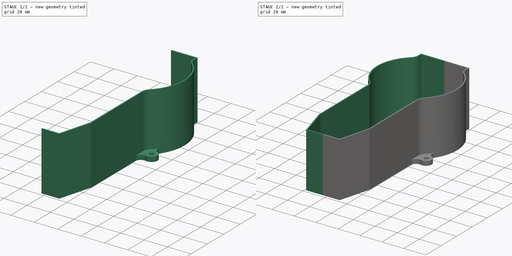
[diagram: build sequence overview — one tinted view per stage of 2, left to right]
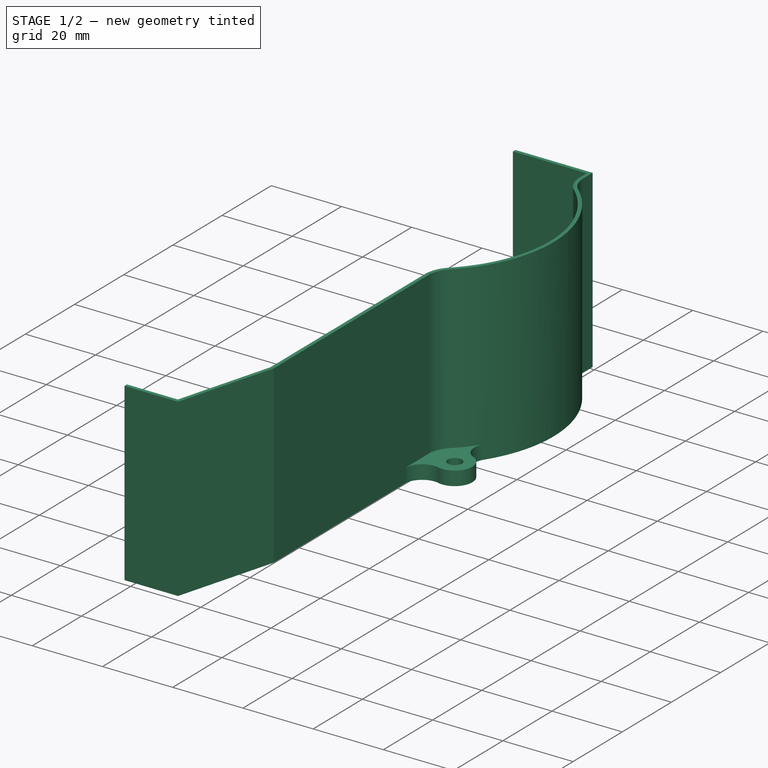
[diagram: stage 1 of 2 — iso view after this stage's code; geometry added in this stage tinted green]
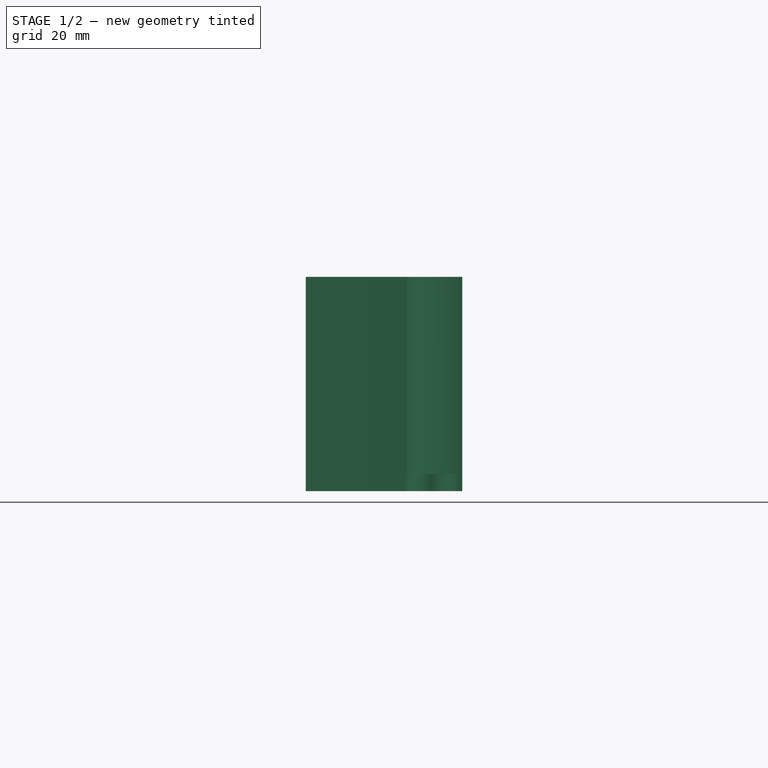
[diagram: stage 1 of 2 — front view after this stage's code; geometry added in this stage tinted green]
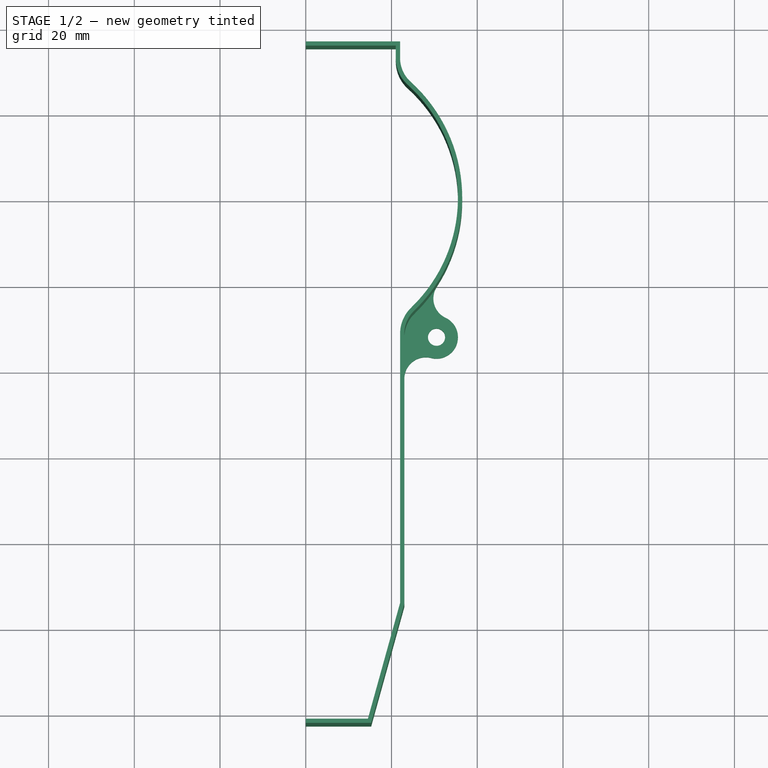
[diagram: stage 1 of 2 — top view after this stage's code; geometry added in this stage tinted green]
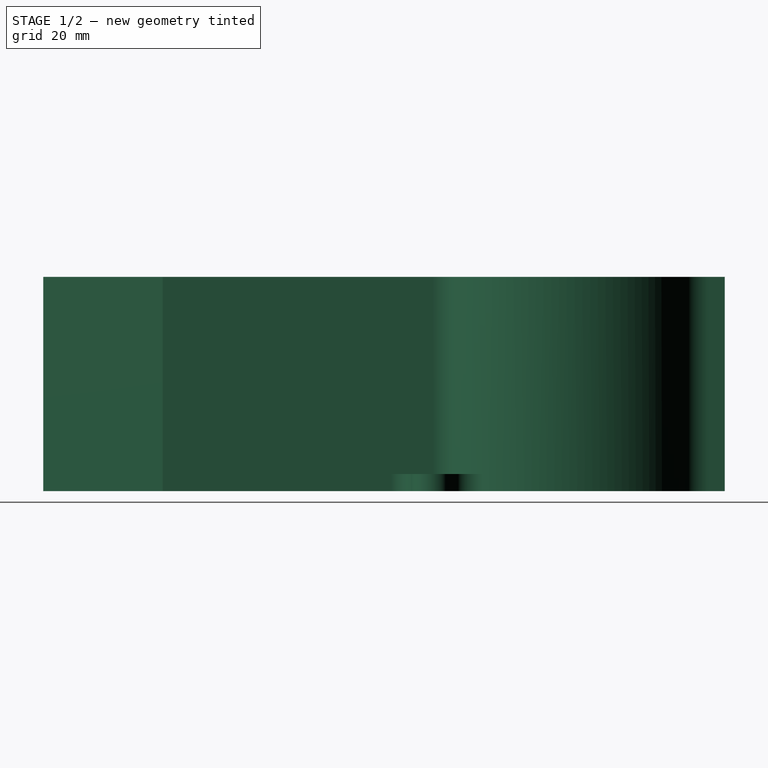
[diagram: stage 1 of 2 — right view after this stage's code; geometry added in this stage tinted green]
FCSTD DOCUMENT  (FreeCAD 0.19R24366 (Git))
Label: Кассета для Обечаек
License: All rights reserved
LicenseURL: http://en.wikipedia.org/wiki/All_rights_reserved
objects: Sketcher::SketchObject×3, PartDesign::Pad×2, PartDesign::Mirrored×1, PartDesign::Body×1
note: 9 computed .brp shape members not serialized (recipe doc carries the construction recipe); baked Part::Feature solids carry a one-line shape summary decoded from their .brp

FEATURE [Sketcher::SketchObject] Sketch
  FullyConstrained = true
  MapMode = 5
  Support = -> [XY_Plane]
  sketch-geometry (9):
    g0: ArcOfCircle CenterX=0 CenterY=0 CenterZ=0 NormalX=0 NormalY=0 NormalZ=1 AngleXU=0 Radius=35.5 StartAngle=5.47828 EndAngle=7.11916
    g1: ArcOfCircle CenterX=29.5 CenterY=32.6458 CenterZ=0 NormalX=0 NormalY=0 NormalZ=1 AngleXU=0 Radius=8.5 StartAngle=3.14159 EndAngle=3.97757
    g2: ArcOfCircle CenterX=30.5 CenterY=-31.7136 CenterZ=0 NormalX=0 NormalY=0 NormalZ=1 AngleXU=0 Radius=8.5 StartAngle=2.33669 EndAngle=3.14159
    g3: LineSegment StartX=21 StartY=32.6458 StartZ=0 EndX=21 EndY=35.5 EndZ=0
    g4: LineSegment StartX=21 StartY=35.5 StartZ=0 EndX=0 EndY=35.5 EndZ=0
    g5: LineSegment StartX=0 StartY=35.5 StartZ=0 EndX=0 EndY=-121.5 EndZ=0
    g6: LineSegment StartX=0 StartY=-121.5 StartZ=0 EndX=14.5 EndY=-121.5 EndZ=0
    g7: LineSegment StartX=14.5 StartY=-121.5 StartZ=0 EndX=22 EndY=-94.5 EndZ=0
    g8: LineSegment StartX=22 StartY=-94.5 StartZ=0 EndX=22 EndY=-31.7136 EndZ=0
  constraints (29):
    c: Coincident(g0,g-1)
    c: Coincident(g1,g0)
    c: Coincident(g2,g0)
    c: Coincident(g3,g1)
    c: Vertical(g3)
    c: Coincident(g4,g3)
    c: PointOnObject(g4,g-2)
    c: Horizontal(g4)
    c: Coincident(g5,g4)
    c: PointOnObject(g5,g-2)
    c: Coincident(g6,g5)
    c: Horizontal(g6)
    c: Coincident(g8,g7)
    c: Coincident(g8,g2)
    c: Coincident(g6,g7)
    c: Vertical(g8)
    c: Tangent(g8,g2)
    c: Tangent(g2,g0)
    c: Tangent(g0,g1)
    c: Tangent(g1,g3)
    c: Distance(g5) = 157
    c: DistanceY(g7,g3) = 130
    c: DistanceX(g3) = 21
    c: DistanceX(g7) = 22
    c: DistanceX(g6) = 14.5
    c: Equal(g2,g1)
    c: Diameter(g2) = 17
    c: PointOnObject(g4,g0)
    c: Diameter(g0) = 71
FEATURE [Sketcher::SketchObject] Sketch001
  FullyConstrained = true
  MapMode = 5
  Support = -> [XY_Plane]
  expr: Constraints[26] = Sketch.Constraints[26]
  expr: Constraints[24] = Sketch.Constraints[24]
  expr: Constraints[23] = Sketch.Constraints[23]
  expr: Constraints[22] = Sketch.Constraints[22]
  expr: Constraints[28] = Sketch.Constraints[28]
  expr: Constraints[21] = Sketch.Constraints[21]
  expr: Constraints[20] = Sketch.Constraints[20]
  sketch-geometry (26):
    g0: ArcOfCircle CenterX=0 CenterY=0 CenterZ=0 NormalX=0 NormalY=0 NormalZ=1 AngleXU=0 Radius=35.5 StartAngle=5.47828 EndAngle=7.11916
    g1: ArcOfCircle CenterX=29.5 CenterY=32.6458 CenterZ=0 NormalX=0 NormalY=0 NormalZ=1 AngleXU=0 Radius=8.5 StartAngle=3.14159 EndAngle=3.97757
    g2: ArcOfCircle CenterX=30.5 CenterY=-31.7136 CenterZ=0 NormalX=0 NormalY=0 NormalZ=1 AngleXU=0 Radius=8.5 StartAngle=2.33669 EndAngle=3.14159
    g3: LineSegment StartX=21 StartY=32.6458 StartZ=0 EndX=21 EndY=35.5 EndZ=0
    g4: LineSegment StartX=21 StartY=35.5 StartZ=0 EndX=0 EndY=35.5 EndZ=0
    g5: LineSegment StartX=0 StartY=35.5 StartZ=0 EndX=0 EndY=-121.5 EndZ=0
    g6: LineSegment StartX=0 StartY=-121.5 StartZ=0 EndX=14.5 EndY=-121.5 EndZ=0
    g7: LineSegment StartX=14.5 StartY=-121.5 StartZ=0 EndX=22 EndY=-94.5 EndZ=0
    g8: LineSegment StartX=22 StartY=-94.5 StartZ=0 EndX=22 EndY=-31.7136 EndZ=0
    g9: LineSegment StartX=0 StartY=35.5 StartZ=0 EndX=0 EndY=36.5 EndZ=0
    g10: LineSegment StartX=0 StartY=36.5 StartZ=0 EndX=21 EndY=36.5 EndZ=0
    g11: LineSegment StartX=22 StartY=35.5 StartZ=0 EndX=22 EndY=32.6458 EndZ=0
    g12: LineSegment StartX=23 StartY=-31.7136 StartZ=0 EndX=23 EndY=-94.5 EndZ=0
    g13: LineSegment StartX=22.9635 StartY=-94.7676 StartZ=0 EndX=15.4635 EndY=-121.768 EndZ=0
    g14: LineSegment StartX=14.5 StartY=-122.5 StartZ=0 EndX=0 EndY=-122.5 EndZ=0
    g15: LineSegment StartX=0 StartY=-122.5 StartZ=0 EndX=0 EndY=-121.5 EndZ=0
    g16: ArcOfCircle CenterX=14.5 CenterY=-121.5 CenterZ=0 NormalX=0 NormalY=0 NormalZ=1 AngleXU=0 Radius=1 StartAngle=4.71239 EndAngle=6.01224
    g17: ArcOfCircle CenterX=22 CenterY=-94.5 CenterZ=0 NormalX=0 NormalY=0 NormalZ=1 AngleXU=0 Radius=1 StartAngle=6.01224 EndAngle=6.28319
    g18: ArcOfCircle CenterX=30.5 CenterY=-31.7136 CenterZ=0 NormalX=0 NormalY=0 NormalZ=1 AngleXU=0 Radius=7.5 StartAngle=2.33669 EndAngle=3.14159
    g19: ArcOfCircle CenterX=0 CenterY=0 CenterZ=0 NormalX=0 NormalY=0 NormalZ=1 AngleXU=0 Radius=36.5 StartAngle=5.47828 EndAngle=7.11916
    g20: ArcOfCircle CenterX=29.5 CenterY=32.6458 CenterZ=0 NormalX=0 NormalY=0 NormalZ=1 AngleXU=0 Radius=7.5 StartAngle=3.14159 EndAngle=3.97757
    g21: ArcOfCircle CenterX=21 CenterY=35.5 CenterZ=0 NormalX=0 NormalY=0 NormalZ=1 AngleXU=0 Radius=1 StartAngle=2.8e-15 EndAngle=1.5708
    g22: LineSegment StartX=21 StartY=36.5 StartZ=0 EndX=22 EndY=36.5 EndZ=0
    g23: LineSegment StartX=22 StartY=35.5 StartZ=0 EndX=22 EndY=36.5 EndZ=0
    g24: LineSegment StartX=14.5 StartY=-122.5 StartZ=0 EndX=15.2601 EndY=-122.5 EndZ=0
    g25: LineSegment StartX=15.4635 StartY=-121.768 StartZ=0 EndX=15.2601 EndY=-122.5 EndZ=0
  constraints (75):
    c: Coincident(g0,g-1)
    c: Coincident(g1,g0)
    c: Coincident(g2,g0)
    c: Coincident(g3,g1)
    c: Vertical(g3)
    c: Coincident(g4,g3)
    c: PointOnObject(g4,g-2)
    c: Horizontal(g4)
    c: Coincident(g5,g4)
    c: PointOnObject(g5,g-2)
    c: Coincident(g6,g5)
    c: Horizontal(g6)
    c: Coincident(g8,g7)
    c: Coincident(g8,g2)
    c: Coincident(g6,g7)
    c: Vertical(g8)
    c: Tangent(g8,g2)
    c: Tangent(g2,g0)
    c: Tangent(g0,g1)
    c: Tangent(g1,g3)
    c: Distance(g5) = 157
    c: DistanceY(g7,g3) = 130
    c: DistanceX(g3) = 21
    c: DistanceX(g7) = 22
    c: DistanceX(g6) = 14.5
    c: Equal(g2,g1)
    c: Diameter(g2) = 17
    c: PointOnObject(g4,g0)
    c: Diameter(g0) = 71
    c: Coincident(g9,g4)
    c: PointOnObject(g9,g-2)
    c: Coincident(g10,g9)
    c: Horizontal(g10)
    c: Vertical(g11)
    c: Vertical(g12)
    c: PointOnObject(g14,g-2)
    c: Horizontal(g14)
    c: Coincident(g15,g14)
    c: Coincident(g15,g6)
    c: Coincident(g16,g6)
    c: Coincident(g16,g14)
    c: Coincident(g16,g13)
    c: Coincident(g17,g7)
    c: Coincident(g17,g13)
    c: Coincident(g17,g12)
    c: Coincident(g18,g2)
    c: Coincident(g18,g12)
    c: Coincident(g19,g0)
    c: Coincident(g19,g18)
    c: Coincident(g20,g1)
    c: Coincident(g20,g19)
    c: Coincident(g20,g11)
    c: Tangent(g14,g16)
    c: Tangent(g16,g13)
    c: Tangent(g13,g17)
    c: Tangent(g17,g12)
    c: Tangent(g12,g18)
    c: Tangent(g18,g19)
    c: Tangent(g19,g20)
    c: Tangent(g20,g11)
    c: Tangent(g10,g21) = 1.5708
    c: Tangent(g11,g21) = 1.5708
    c: Coincident(g21,g3)
    c: Equal(g17,g16)
    c: Diameter(g16) = 2
    c: Coincident(g22,g10)
    c: Horizontal(g22)
    c: Coincident(g23,g11)
    c: Coincident(g23,g22)
    c: Vertical(g23)
    c: Coincident(g24,g14)
    c: Horizontal(g24)
    c: Coincident(g25,g13)
    c: Coincident(g25,g24)
    c: Tangent(g25,g16)
FEATURE [Sketcher::SketchObject] Sketch002
  FullyConstrained = false
  MapMode = 5
  Support = -> [XY_Plane]
  expr: Constraints[63] = Sketch001.Constraints[64]
  expr: Constraints[20] = Sketch001.Constraints[20]
  expr: Constraints[26] = Sketch001.Constraints[26]
  expr: Constraints[24] = Sketch001.Constraints[24]
  expr: Constraints[23] = Sketch001.Constraints[23]
  expr: Constraints[22] = Sketch001.Constraints[22]
  expr: Constraints[28] = Sketch001.Constraints[28]
  expr: Constraints[21] = Sketch001.Constraints[21]
  sketch-geometry (37):
    g0: ArcOfCircle CenterX=0 CenterY=0 CenterZ=0 NormalX=0 NormalY=0 NormalZ=1 AngleXU=0 Radius=35.5 StartAngle=5.47828 EndAngle=7.11916
    g1: ArcOfCircle CenterX=29.5 CenterY=32.6458 CenterZ=0 NormalX=0 NormalY=0 NormalZ=1 AngleXU=0 Radius=8.5 StartAngle=3.14159 EndAngle=3.97757
    g2: ArcOfCircle CenterX=30.5 CenterY=-31.7136 CenterZ=0 NormalX=0 NormalY=0 NormalZ=1 AngleXU=0 Radius=8.5 StartAngle=2.33669 EndAngle=3.14159
    g3: LineSegment StartX=21 StartY=32.6458 StartZ=0 EndX=21 EndY=35.5 EndZ=0
    g4: LineSegment StartX=21 StartY=35.5 StartZ=0 EndX=0 EndY=35.5 EndZ=0
    g5: LineSegment StartX=0 StartY=35.5 StartZ=0 EndX=0 EndY=-121.5 EndZ=0
    g6: LineSegment StartX=0 StartY=-121.5 StartZ=0 EndX=14.5 EndY=-121.5 EndZ=0
    g7: LineSegment StartX=14.5 StartY=-121.5 StartZ=0 EndX=22 EndY=-94.5 EndZ=0
    g8: LineSegment StartX=22 StartY=-94.5 StartZ=0 EndX=22 EndY=-31.7136 EndZ=0
    g9: LineSegment StartX=0 StartY=35.5 StartZ=0 EndX=0 EndY=36.4917 EndZ=0
    g10: LineSegment StartX=0 StartY=36.4917 StartZ=0 EndX=21 EndY=36.4917 EndZ=0
    g11: LineSegment StartX=21.9917 StartY=35.5 StartZ=0 EndX=21.9917 EndY=32.6458 EndZ=0
    g12: LineSegment StartX=23 StartY=-31.7136 StartZ=0 EndX=23 EndY=-94.5 EndZ=0
    g13: LineSegment StartX=22.9635 StartY=-94.7676 StartZ=0 EndX=15.4635 EndY=-121.768 EndZ=0
    g14: LineSegment StartX=14.5 StartY=-122.5 StartZ=0 EndX=0 EndY=-122.5 EndZ=0
    g15: LineSegment StartX=0 StartY=-122.5 StartZ=0 EndX=0 EndY=-121.5 EndZ=0
    g16: ArcOfCircle CenterX=14.5 CenterY=-121.5 CenterZ=0 NormalX=0 NormalY=0 NormalZ=1 AngleXU=0 Radius=1 StartAngle=4.71239 EndAngle=6.01224
    g17: ArcOfCircle CenterX=22 CenterY=-94.5 CenterZ=0 NormalX=0 NormalY=0 NormalZ=1 AngleXU=0 Radius=1 StartAngle=6.01224 EndAngle=6.28319
    g18: ArcOfCircle CenterX=30.5 CenterY=-31.7136 CenterZ=0 NormalX=0 NormalY=0 NormalZ=1 AngleXU=0 Radius=7.5 StartAngle=2.33669 EndAngle=3.14159
    g19: ArcOfCircle CenterX=0 CenterY=0 CenterZ=0 NormalX=0 NormalY=0 NormalZ=1 AngleXU=0 Radius=36.5 StartAngle=5.47828 EndAngle=7.12797
    g20: ArcOfCircle CenterX=29.5 CenterY=32.6458 CenterZ=0 NormalX=0 NormalY=0 NormalZ=1 AngleXU=0 Radius=7.50831 StartAngle=3.14159 EndAngle=3.93472
    g21: ArcOfCircle CenterX=21 CenterY=35.5 CenterZ=0 NormalX=0 NormalY=0 NormalZ=1 AngleXU=0 Radius=0.991692 StartAngle=-3.6e-15 EndAngle=1.5708
    g22: LineSegment StartX=21 StartY=36.4917 StartZ=0 EndX=21.9917 EndY=36.4917 EndZ=0
    g23: LineSegment StartX=21.9917 StartY=35.5 StartZ=0 EndX=21.9917 EndY=36.4917 EndZ=0
    g24: LineSegment StartX=14.5 StartY=-122.5 StartZ=0 EndX=15.2601 EndY=-122.5 EndZ=0
    g25: LineSegment StartX=15.4635 StartY=-121.768 StartZ=0 EndX=15.2601 EndY=-122.5 EndZ=0
    g26: Circle CenterX=30.5 CenterY=-31.7136 CenterZ=0 NormalX=0 NormalY=0 NormalZ=1 AngleXU=0 Radius=2
    g27: ArcOfCircle CenterX=30.5 CenterY=-31.7136 CenterZ=0 NormalX=0 NormalY=0 NormalZ=1 AngleXU=0 Radius=5 StartAngle=4.45971 EndAngle=7.41364
    g28: ArcOfCircle CenterX=28 CenterY=-41.396 CenterZ=0 NormalX=0 NormalY=0 NormalZ=1 AngleXU=0 Radius=5 StartAngle=1.31812 EndAngle=3.14159
    g29: ArcOfCircle CenterX=34.7625 CenterY=-22.6675 CenterZ=0 NormalX=0 NormalY=0 NormalZ=1 AngleXU=0 Radius=5 StartAngle=2.56377 EndAngle=4.27204
    g30: ArcOfCircle CenterX=30.5 CenterY=-31.7136 CenterZ=0 NormalX=0 NormalY=0 NormalZ=1 AngleXU=0 Radius=7.5 StartAngle=2.33669 EndAngle=3.14159
    g31: ArcOfCircle CenterX=0 CenterY=0 CenterZ=0 NormalX=0 NormalY=0 NormalZ=1 AngleXU=0 Radius=36.5 StartAngle=5.47828 EndAngle=5.70536
    g32: LineSegment StartX=23 StartY=-31.7136 StartZ=0 EndX=23 EndY=-41.396 EndZ=0
    g33: LineSegment StartX=23 StartY=-41.396 StartZ=0 EndX=22.2672 EndY=-41.501 EndZ=0
    g34: LineSegment StartX=22.2672 StartY=-41.501 StartZ=0 EndX=23 EndY=-31.7136 EndZ=0
    g35: LineSegment StartX=30.5743 StartY=-19.9365 StartZ=0 EndX=28.6389 EndY=-21.4771 EndZ=0
    g36: LineSegment StartX=28.6389 StartY=-21.4771 StartZ=0 EndX=25.3011 EndY=-26.3078 EndZ=0
  constraints (100):
    c: Coincident(g0,g-1)
    c: Coincident(g1,g0)
    c: Coincident(g2,g0)
    c: Coincident(g3,g1)
    c: Vertical(g3)
    c: Coincident(g4,g3)
    c: PointOnObject(g4,g-2)
    c: Horizontal(g4)
    c: Coincident(g5,g4)
    c: PointOnObject(g5,g-2)
    c: Coincident(g6,g5)
    c: Horizontal(g6)
    c: Coincident(g8,g7)
    c: Coincident(g8,g2)
    c: Coincident(g6,g7)
    c: Vertical(g8)
    c: Tangent(g8,g2)
    c: Tangent(g2,g0)
    c: Tangent(g0,g1)
    c: Tangent(g1,g3)
    c: Distance(g5) = 157
    c: DistanceY(g7,g3) = 130
    c: DistanceX(g3) = 21
    c: DistanceX(g7) = 22
    c: DistanceX(g6) = 14.5
    c: Equal(g2,g1)
    c: Diameter(g2) = 17
    c: PointOnObject(g4,g0)
    c: Diameter(g0) = 71
    c: Coincident(g9,g4)
    c: PointOnObject(g9,g-2)
    c: Coincident(g10,g9)
    c: Horizontal(g10)
    c: Vertical(g11)
    c: Vertical(g12)
    c: PointOnObject(g14,g-2)
    c: Horizontal(g14)
    c: Coincident(g15,g14)
    c: Coincident(g15,g6)
    c: Coincident(g16,g6)
    c: Coincident(g16,g14)
    c: Coincident(g16,g13)
    c: Coincident(g17,g7)
    c: Coincident(g17,g13)
    c: Coincident(g17,g12)
    c: Coincident(g18,g2)
    c: Coincident(g18,g12)
    c: Coincident(g19,g0)
    c: Coincident(g19,g18)
    c: Coincident(g20,g1)
    c: Coincident(g20,g19)
    c: Coincident(g20,g11)
    c: Tangent(g14,g16)
    c: Tangent(g16,g13)
    c: Tangent(g13,g17)
    c: Tangent(g17,g12)
    c: Tangent(g12,g18)
    c: Tangent(g18,g19)
    c: Tangent(g20,g11)
    c: Tangent(g10,g21) = 1.5708
    c: Tangent(g11,g21) = 1.5708
    c: Coincident(g21,g3)
    c: Equal(g17,g16)
    c: Diameter(g16) = 2
    c: Coincident(g22,g10)
    c: Horizontal(g22)
    c: Coincident(g23,g11)
    c: Coincident(g23,g22)
    c: Vertical(g23)
    c: Coincident(g24,g14)
    c: Horizontal(g24)
    c: Coincident(g25,g13)
    c: Coincident(g25,g24)
    c: Coincident(g27,g26)
    c: Coincident(g28,g27)
    c: Coincident(g29,g27)
    c: Diameter(g26) = 4
    c: Diameter(g27) = 10
    c: Tangent(g27,g29)
    c: Tangent(g29,g19)
    c: Tangent(g27,g28)
    c: Tangent(g28,g12)
    c: Equal(g28,g29)
    c: Equal(g29,g27)
    c: Coincident(g26,g2)
    c: Coincident(g30,g26)
    c: Coincident(g30,g12)
    c: Coincident(g30,g18)
    c: Coincident(g31,g-1)
    c: Coincident(g31,g30)
    c: Coincident(g31,g29)
    c: Coincident(g32,g30)
    c: Coincident(g32,g28)
    c: Vertical(g32)
    c: Coincident(g33,g28)
    c: Coincident(g34,g33)
    c: Coincident(g34,g30)
    c: Coincident(g35,g29)
    c: Coincident(g36,g35)
    c: Coincident(g36,g30)
FEATURE [PartDesign::Pad] Pad
  Direction = (1,1,1)
  Length = 50
  Length2 = 100
  Profile = -> Sketch001
  Type = 0
FEATURE [PartDesign::Pad] Pad001
  BaseFeature = -> Pad
  Direction = (1,1,1)
  Length = 4
  Length2 = 100
  Profile = -> Sketch002
  Type = 0
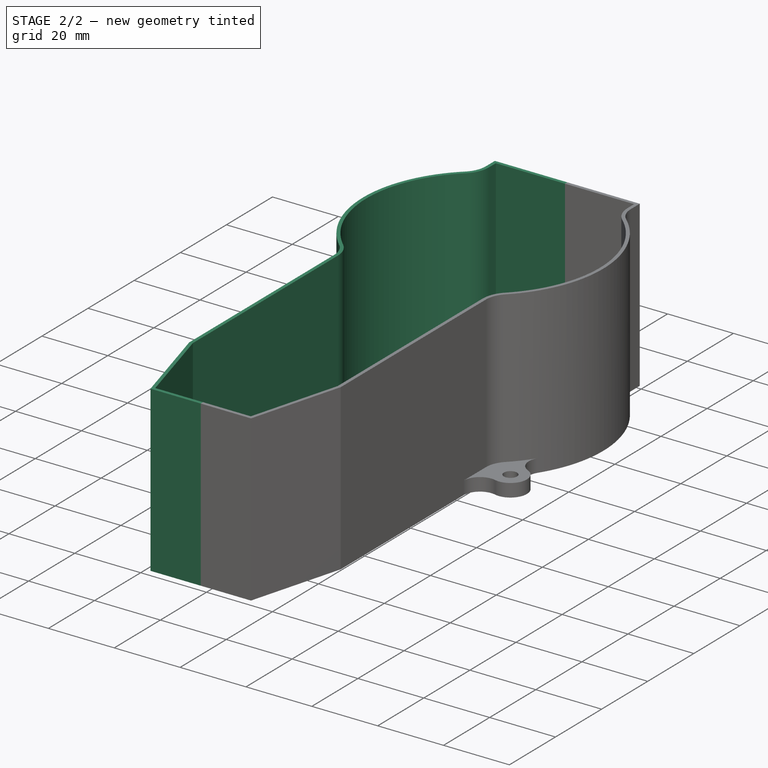
[diagram: stage 2 of 2 — iso view after this stage's code; geometry added in this stage tinted green]
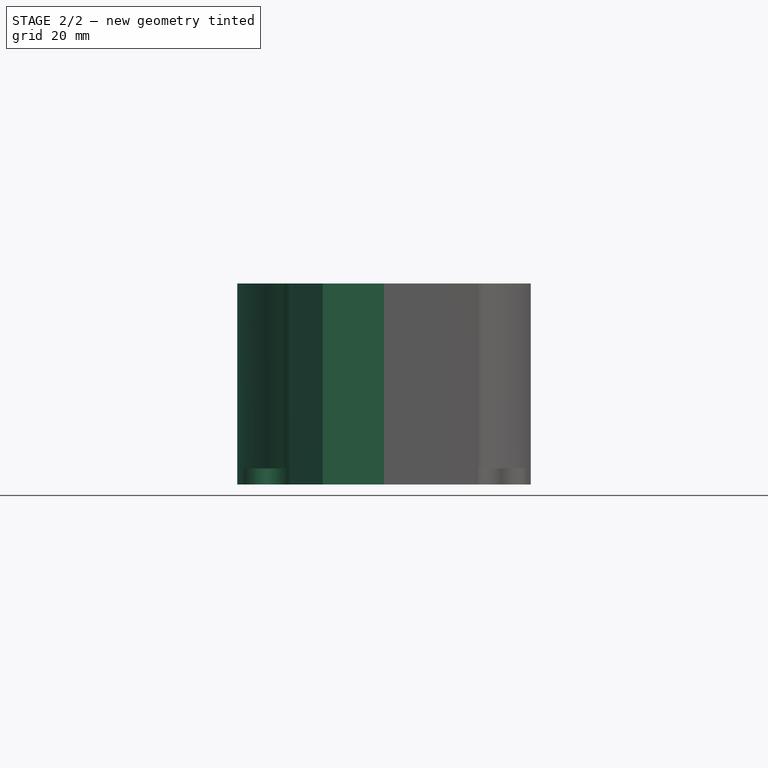
[diagram: stage 2 of 2 — front view after this stage's code; geometry added in this stage tinted green]
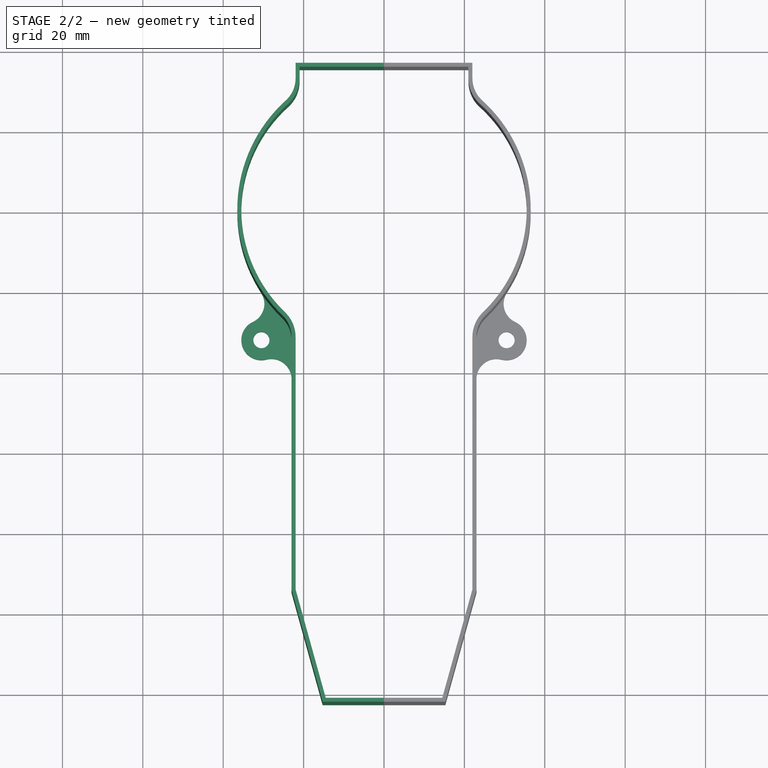
[diagram: stage 2 of 2 — top view after this stage's code; geometry added in this stage tinted green]
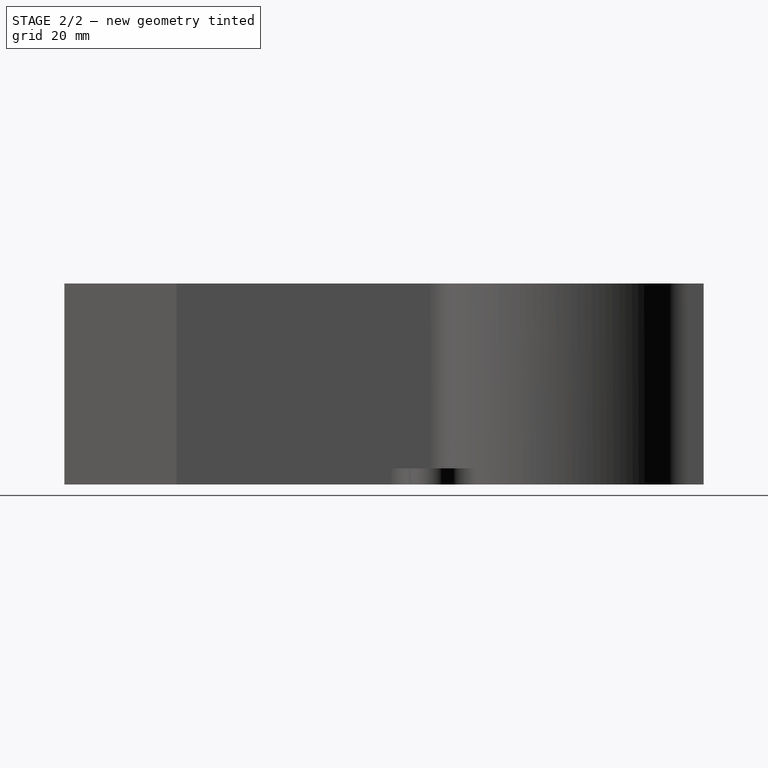
[diagram: stage 2 of 2 — right view after this stage's code; geometry added in this stage tinted green]
FEATURE [PartDesign::Mirrored] Mirrored
  BaseFeature = -> Pad001
  MirrorPlane = -> Sketch001 [V_Axis]
  Originals = -> [Pad,Pad001]
FEATURE [PartDesign::Body] Body
  Group = -> [Sketch,Sketch001,Sketch002,Pad,Pad001,Mirrored]
  Origin = -> Origin
  Tip = -> Mirrored
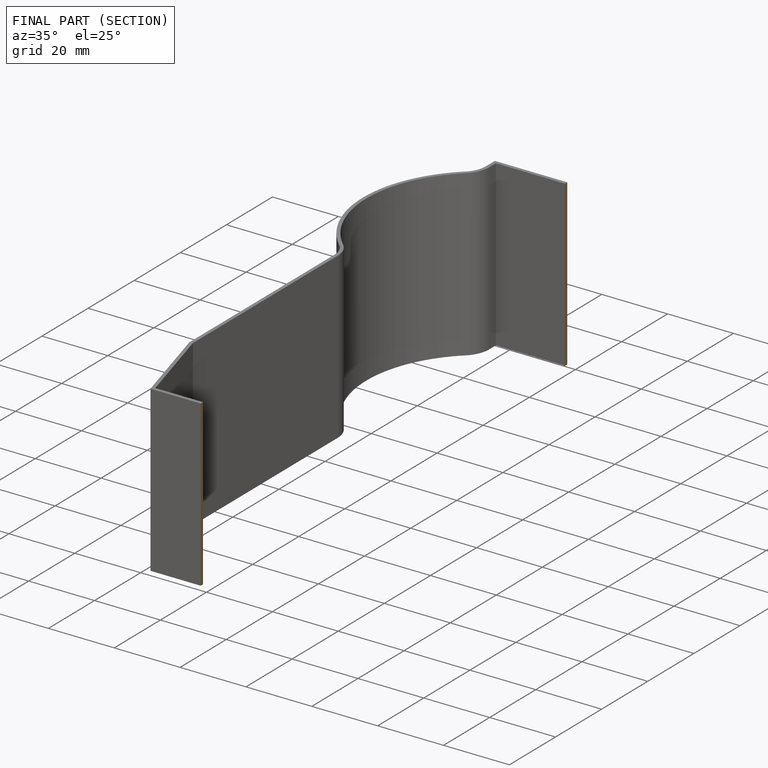
[diagram: finished part — half-section view (interior)]
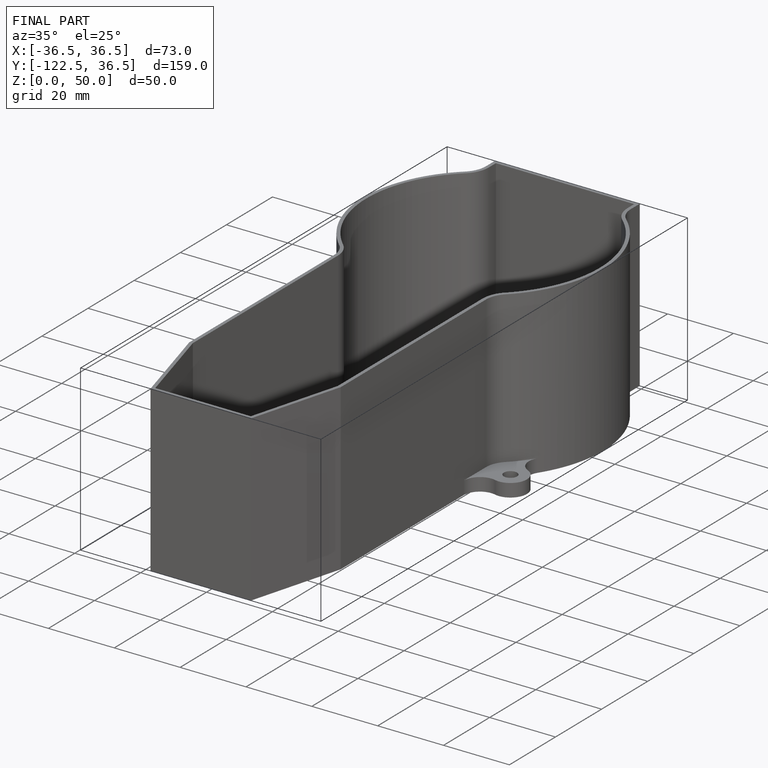
[diagram: finished part — iso view with bounding-box wireframe]
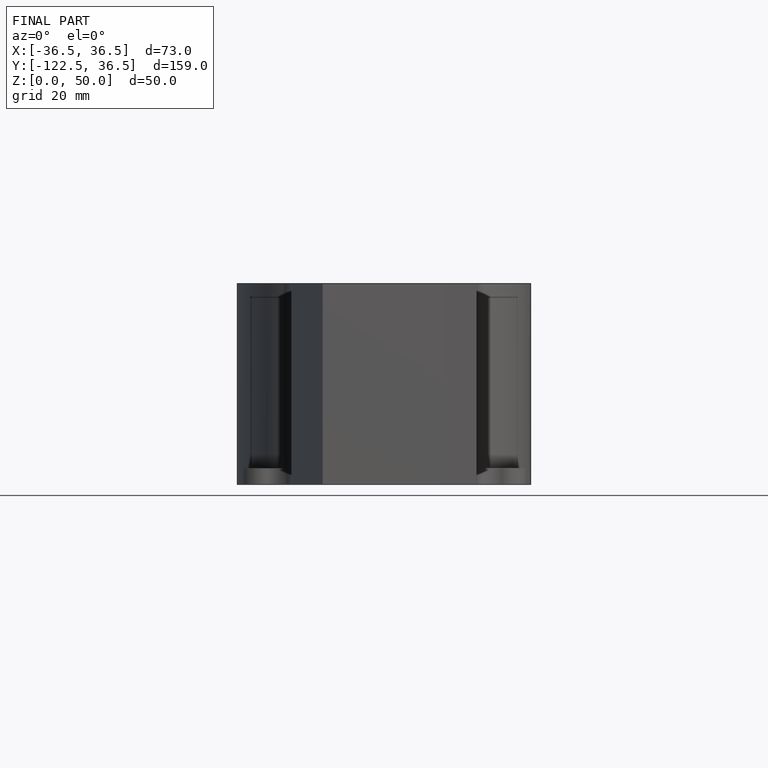
[diagram: finished part — front view with bounding-box wireframe]
